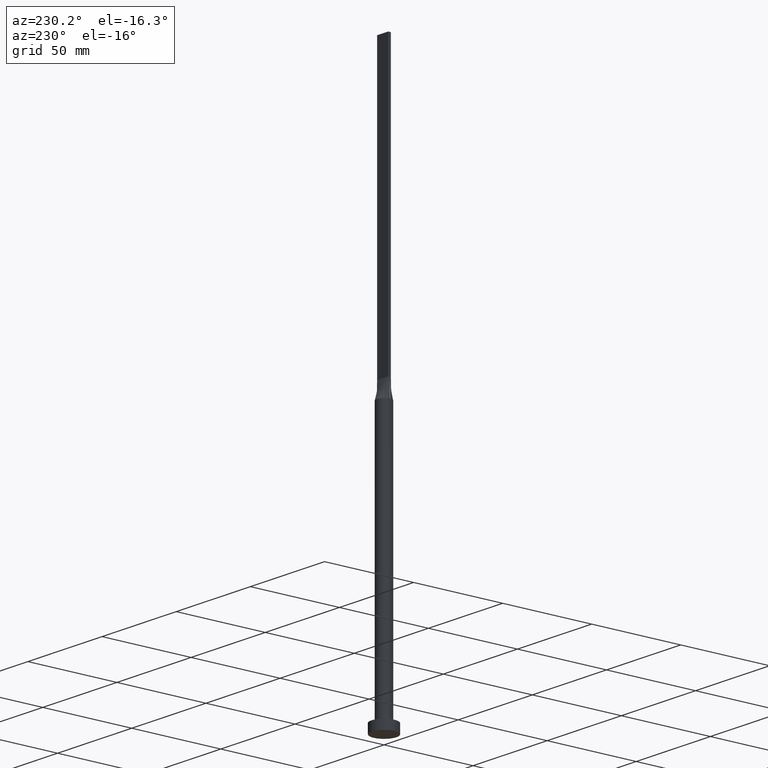
[diagram: clean part render]
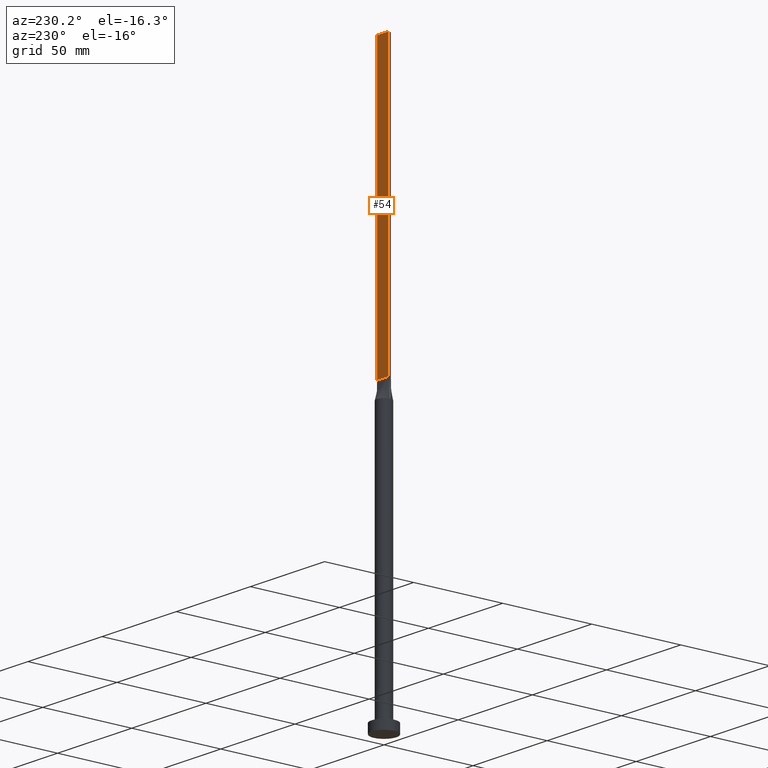
[diagram: same view with one face highlighted and labeled with its STEP entity id]
A machine part, auxiliary view. The second image highlights one B-rep face of the part: STEP entity #54.
In plain terms, the highlighted planar face has unit normal (0, -1, 0).
Its self-contained STEP definition (entity closure, byte-faithful):
#9 = CARTESIAN_POINT ( 'NONE',  ( -3.750000000000000000, 0.7500000000000002220, 160.0000000000000000 ) ) ;
#46 = CARTESIAN_POINT ( 'NONE',  ( -3.750000000000000000, 0.7500000000000002220, 315.0000000000000000 ) ) ;
#50 = LINE ( 'NONE', #240, #575 ) ;
#54 = ADVANCED_FACE ( 'NONE', ( #149 ), #234, .F. ) ;
#57 = CARTESIAN_POINT ( 'NONE',  ( 3.750000000000000000, 0.7500000000000002220, 315.0000000000000000 ) ) ;
#62 = AXIS2_PLACEMENT_3D ( 'NONE', #198, #90, #316 ) ;
#90 = DIRECTION ( 'NONE',  ( 0.000000000000000000, -1.000000000000000000, 0.000000000000000000 ) ) ;
#147 = VECTOR ( 'NONE', #380, 1000.000000000000000 ) ;
#149 = FACE_OUTER_BOUND ( 'NONE', #460, .T. ) ;
#164 = ORIENTED_EDGE ( 'NONE', *, *, #194, .F. ) ;
#172 = CARTESIAN_POINT ( 'NONE',  ( 3.750000000000000000, 0.7500000000000002220, 160.0000000000000000 ) ) ;
#194 = EDGE_CURVE ( 'NONE', #390, #327, #348, .T. ) ;
#198 = CARTESIAN_POINT ( 'NONE',  ( 3.750000000000000000, 0.7500000000000002220, 315.0000000000000000 ) ) ;
#234 = PLANE ( 'NONE',  #62 ) ;
#240 = CARTESIAN_POINT ( 'NONE',  ( -3.750000000000000000, 0.7500000000000002220, 160.0000000000000000 ) ) ;
#285 = EDGE_CURVE ( 'NONE', #327, #541, #302, .T. ) ;
#287 = VERTEX_POINT ( 'NONE', #172 ) ;
#295 = CARTESIAN_POINT ( 'NONE',  ( -3.750000000000000000, 0.7500000000000002220, 315.0000000000000000 ) ) ;
#297 = ORIENTED_EDGE ( 'NONE', *, *, #285, .F. ) ;
#302 = LINE ( 'NONE', #295, #147 ) ;
#304 = VECTOR ( 'NONE', #412, 1000.000000000000000 ) ;
#305 = CARTESIAN_POINT ( 'NONE',  ( 3.750000000000000000, 0.7500000000000002220, 315.0000000000000000 ) ) ;
#307 = ORIENTED_EDGE ( 'NONE', *, *, #492, .T. ) ;
#316 = DIRECTION ( 'NONE',  ( 0.000000000000000000, -0.000000000000000000, -1.000000000000000000 ) ) ;
#327 = VERTEX_POINT ( 'NONE', #46 ) ;
#348 = LINE ( 'NONE', #305, #581 ) ;
#366 = CARTESIAN_POINT ( 'NONE',  ( 3.750000000000000000, 0.7500000000000002220, 315.0000000000000000 ) ) ;
#380 = DIRECTION ( 'NONE',  ( -0.000000000000000000, -0.000000000000000000, -1.000000000000000000 ) ) ;
#390 = VERTEX_POINT ( 'NONE', #366 ) ;
#406 = DIRECTION ( 'NONE',  ( -1.000000000000000000, -0.000000000000000000, -0.000000000000000000 ) ) ;
#412 = DIRECTION ( 'NONE',  ( -0.000000000000000000, -0.000000000000000000, -1.000000000000000000 ) ) ;
#421 = DIRECTION ( 'NONE',  ( -1.000000000000000000, 0.000000000000000000, 0.000000000000000000 ) ) ;
#460 = EDGE_LOOP ( 'NONE', ( #307, #297, #164, #566 ) ) ;
#461 = LINE ( 'NONE', #57, #304 ) ;
#492 = EDGE_CURVE ( 'NONE', #287, #541, #50, .T. ) ;
#537 = EDGE_CURVE ( 'NONE', #390, #287, #461, .T. ) ;
#541 = VERTEX_POINT ( 'NONE', #9 ) ;
#566 = ORIENTED_EDGE ( 'NONE', *, *, #537, .T. ) ;
#575 = VECTOR ( 'NONE', #406, 1000.000000000000000 ) ;
#581 = VECTOR ( 'NONE', #421, 1000.000000000000000 ) ;